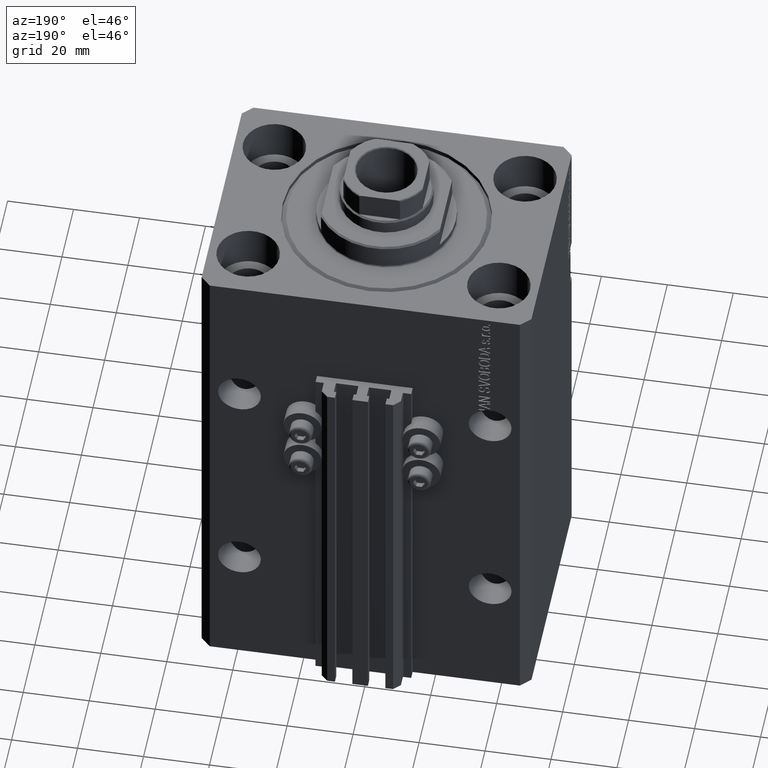
[diagram: clean part render]
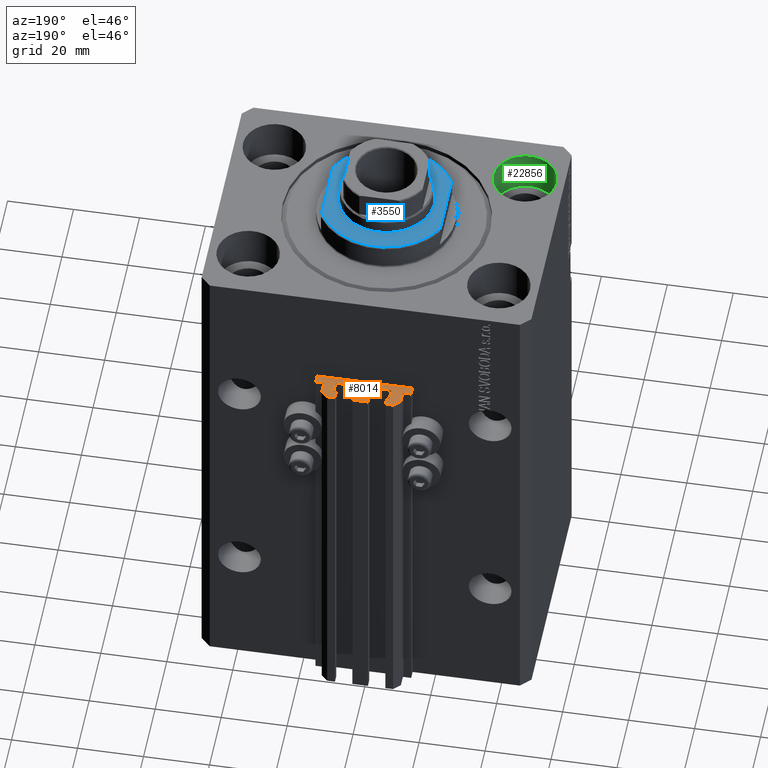
[diagram: same view with three faces highlighted in distinct colors, each labeled with its STEP entity id]
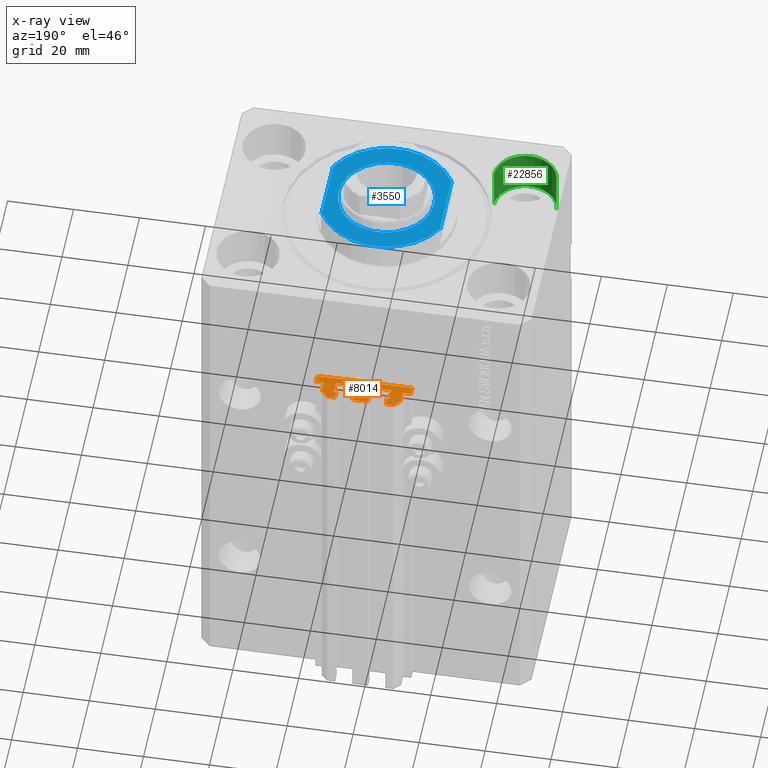
[diagram: x-ray of the same camera — body ghosted, the three highlighted faces saturated]
A machine part, auxiliary view with three faces highlighted in distinct colors.
The next image is the same camera in x-ray (body ghosted, the three faces saturated) — at least one of them is partly hidden behind the body in this view.
Their STEP definitions:

[orange] entity #8014 — the highlighted planar face has unit normal (0, 0, 1).
#112 = LINE ( 'NONE', #11040, #38603 ) ;
#312 = DIRECTION ( 'NONE',  ( 1.000000000000000000, 0.000000000000000000, 0.000000000000000000 ) ) ;
#487 = ORIENTED_EDGE ( 'NONE', *, *, #33979, .T. ) ;
#779 = DIRECTION ( 'NONE',  ( 0.000000000000000000, 0.000000000000000000, 1.000000000000000000 ) ) ;
#811 = LINE ( 'NONE', #11747, #3834 ) ;
#1242 = DIRECTION ( 'NONE',  ( -1.000000000000000000, 3.016910393003142859E-15, 0.000000000000000000 ) ) ;
#1515 = CARTESIAN_POINT ( 'NONE',  ( 12.00000000000000000, 43.50000000000002132, -33.00000000000000000 ) ) ;
#1530 = EDGE_CURVE ( 'NONE', #45175, #7812, #13263, .T. ) ;
#1859 = LINE ( 'NONE', #8439, #25325 ) ;
#1941 = CARTESIAN_POINT ( 'NONE',  ( -14.50000000000000000, 39.99999999999999289, -33.00000000000000000 ) ) ;
#2006 = CARTESIAN_POINT ( 'NONE',  ( -12.20000000000000107, 39.99999999999998579, -33.00000000000000000 ) ) ;
#2014 = CARTESIAN_POINT ( 'NONE',  ( 1.800000000000000933, 43.10000000000001563, -33.00000000000000000 ) ) ;
#2026 = VERTEX_POINT ( 'NONE', #15361 ) ;
#2181 = EDGE_LOOP ( 'NONE', ( #47272, #13714, #38264, #10591, #11850, #34639, #36152, #16729, #28123, #32084, #20403, #42300, #10362, #31380, #44688, #30575, #34344, #47766, #24332, #41920, #40230, #35853, #8156, #44907, #38311, #28999, #36255, #23170, #4377, #39959, #42452, #22387, #487, #44876, #34476, #45355 ) ) ;
#2293 = CARTESIAN_POINT ( 'NONE',  ( -8.399999999999996803, 39.69999999999999574, -33.00000000000000000 ) ) ;
#3006 = AXIS2_PLACEMENT_3D ( 'NONE', #28438, #17453, #35991 ) ;
#3054 = DIRECTION ( 'NONE',  ( 1.000000000000000000, 0.000000000000000000, 0.000000000000000000 ) ) ;
#3213 = CARTESIAN_POINT ( 'NONE',  ( -7.650000000000002132, 45.49999999999999289, -33.00000000000000000 ) ) ;
#3340 = CARTESIAN_POINT ( 'NONE',  ( 8.199999999999999289, 39.70000000000000284, -33.00000000000000000 ) ) ;
#3342 = CARTESIAN_POINT ( 'NONE',  ( -12.00000000000000000, 40.19999999999998863, -33.00000000000000000 ) ) ;
#3834 = VECTOR ( 'NONE', #15652, 1000.000000000000000 ) ;
#3875 = VECTOR ( 'NONE', #37937, 1000.000000000000000 ) ;
#3954 = DIRECTION ( 'NONE',  ( 0.000000000000000000, 0.000000000000000000, 1.000000000000000000 ) ) ;
#3999 = CARTESIAN_POINT ( 'NONE',  ( -12.20000000000000107, 40.19999999999998863, -33.00000000000000000 ) ) ;
#4063 = LINE ( 'NONE', #30136, #3875 ) ;
#4238 = DIRECTION ( 'NONE',  ( 1.000000000000000000, 0.000000000000000000, 0.000000000000000000 ) ) ;
#4305 = CARTESIAN_POINT ( 'NONE',  ( -1.599999999999997868, 42.90000000000000568, -33.00000000000000000 ) ) ;
#4377 = ORIENTED_EDGE ( 'NONE', *, *, #14404, .F. ) ;
#4388 = LINE ( 'NONE', #45357, #26268 ) ;
#4472 = CIRCLE ( 'NONE', #28622, 0.2000000000000040079 ) ;
#4640 = LINE ( 'NONE', #1941, #36259 ) ;
#4657 = CARTESIAN_POINT ( 'NONE',  ( -1.600000000000000755, 39.69999999999999574, -33.00000000000000000 ) ) ;
#4808 = VERTEX_POINT ( 'NONE', #41152 ) ;
#5164 = VECTOR ( 'NONE', #27608, 1000.000000000000000 ) ;
#5512 = CARTESIAN_POINT ( 'NONE',  ( -1.600000000000000533, 42.90000000000000568, -33.00000000000000000 ) ) ;
#5860 = VECTOR ( 'NONE', #16462, 1000.000000000000000 ) ;
#6119 = CARTESIAN_POINT ( 'NONE',  ( -10.00000000000000000, 45.49999999999999289, -33.00000000000000000 ) ) ;
#6802 = LINE ( 'NONE', #21896, #46482 ) ;
#6853 = VERTEX_POINT ( 'NONE', #33206 ) ;
#6878 = CARTESIAN_POINT ( 'NONE',  ( 14.49999999999999645, 37.50000000000000711, -33.00000000000000000 ) ) ;
#7037 = VECTOR ( 'NONE', #9351, 1000.000000000000000 ) ;
#7167 = CARTESIAN_POINT ( 'NONE',  ( 7.649999999999998579, 43.10000000000002984, -33.00000000000000000 ) ) ;
#7234 = DIRECTION ( 'NONE',  ( 1.000000000000000000, 0.000000000000000000, 0.000000000000000000 ) ) ;
#7355 = DIRECTION ( 'NONE',  ( 1.000000000000000000, 0.000000000000000000, 0.000000000000000000 ) ) ;
#7358 = DIRECTION ( 'NONE',  ( 1.000000000000000000, 0.000000000000000000, 0.000000000000000000 ) ) ;
#7423 = CARTESIAN_POINT ( 'NONE',  ( -1.800000000000000933, 42.90000000000000568, -33.00000000000000000 ) ) ;
#7454 = DIRECTION ( 'NONE',  ( 0.000000000000000000, 0.000000000000000000, 1.000000000000000000 ) ) ;
#7602 = CARTESIAN_POINT ( 'NONE',  ( 12.20000000000000107, 40.20000000000002416, -33.00000000000000000 ) ) ;
#7719 = CARTESIAN_POINT ( 'NONE',  ( -7.650000000000002132, 45.49999999999999289, -33.00000000000000000 ) ) ;
#7812 = VERTEX_POINT ( 'NONE', #7719 ) ;
#7988 = LINE ( 'NONE', #16011, #44884 ) ;
#8014 = ADVANCED_FACE ( 'NONE', ( #27679 ), #24501, .T. ) ;
#8089 = EDGE_CURVE ( 'NONE', #36703, #29870, #25162, .T. ) ;
#8156 = ORIENTED_EDGE ( 'NONE', *, *, #8089, .F. ) ;
#8269 = CARTESIAN_POINT ( 'NONE',  ( -8.199999999999999289, 43.09999999999999432, -33.00000000000000000 ) ) ;
#8278 = CIRCLE ( 'NONE', #15365, 0.2000000000000005107 ) ;
#8385 = CARTESIAN_POINT ( 'NONE',  ( -8.400000000000000355, 42.89999999999999147, -33.00000000000000000 ) ) ;
#8439 = CARTESIAN_POINT ( 'NONE',  ( -8.199999999999999289, 43.09999999999999432, -33.00000000000000000 ) ) ;
#8787 = VERTEX_POINT ( 'NONE', #27564 ) ;
#9153 = DIRECTION ( 'NONE',  ( 0.000000000000000000, 0.000000000000000000, 1.000000000000000000 ) ) ;
#9351 = DIRECTION ( 'NONE',  ( -1.000000000000000000, -1.084202172485504828E-15, 0.000000000000000000 ) ) ;
#9688 = VERTEX_POINT ( 'NONE', #14133 ) ;
#9824 = VERTEX_POINT ( 'NONE', #8269 ) ;
#9972 = CARTESIAN_POINT ( 'NONE',  ( 11.99999999999999822, 40.20000000000002416, -33.00000000000000000 ) ) ;
#10060 = CARTESIAN_POINT ( 'NONE',  ( 8.199999999999999289, 39.50000000000000711, -33.00000000000000000 ) ) ;
#10362 = ORIENTED_EDGE ( 'NONE', *, *, #18110, .F. ) ;
#10387 = VECTOR ( 'NONE', #29149, 1000.000000000000227 ) ;
#10514 = VERTEX_POINT ( 'NONE', #13899 ) ;
#10567 = AXIS2_PLACEMENT_3D ( 'NONE', #31178, #33693, #312 ) ;
#10591 = ORIENTED_EDGE ( 'NONE', *, *, #44066, .T. ) ;
#10900 = VECTOR ( 'NONE', #43013, 1000.000000000000000 ) ;
#11040 = CARTESIAN_POINT ( 'NONE',  ( 7.649999999999998579, 43.10000000000002984, -33.00000000000000000 ) ) ;
#11747 = CARTESIAN_POINT ( 'NONE',  ( -2.350000000000003197, 43.10000000000000853, -33.00000000000000000 ) ) ;
#11850 = ORIENTED_EDGE ( 'NONE', *, *, #37394, .F. ) ;
#12012 = CARTESIAN_POINT ( 'NONE',  ( -1.800000000000000933, 43.10000000000001563, -33.00000000000000000 ) ) ;
#12089 = VECTOR ( 'NONE', #1242, 1000.000000000000000 ) ;
#12179 = LINE ( 'NONE', #41480, #12089 ) ;
#12232 = VECTOR ( 'NONE', #19794, 1000.000000000000000 ) ;
#12433 = VECTOR ( 'NONE', #20499, 1000.000000000000114 ) ;
#12604 = VERTEX_POINT ( 'NONE', #21486 ) ;
#12867 = VERTEX_POINT ( 'NONE', #9972 ) ;
#13085 = EDGE_CURVE ( 'NONE', #28530, #41012, #13674, .T. ) ;
#13104 = CARTESIAN_POINT ( 'NONE',  ( -7.650000000000002132, 43.09999999999999432, -33.00000000000000000 ) ) ;
#13263 = LINE ( 'NONE', #28160, #47568 ) ;
#13478 = CARTESIAN_POINT ( 'NONE',  ( 8.200000000000001066, 43.10000000000002984, -33.00000000000000000 ) ) ;
#13489 = VERTEX_POINT ( 'NONE', #6119 ) ;
#13567 = CARTESIAN_POINT ( 'NONE',  ( 7.649999999999998579, 45.50000000000002842, -33.00000000000000000 ) ) ;
#13674 = CIRCLE ( 'NONE', #46381, 0.1999999999999994282 ) ;
#13714 = ORIENTED_EDGE ( 'NONE', *, *, #46374, .T. ) ;
#13899 = CARTESIAN_POINT ( 'NONE',  ( 1.800000000000000933, 43.10000000000001563, -33.00000000000000000 ) ) ;
#14133 = CARTESIAN_POINT ( 'NONE',  ( 1.800000000000000933, 39.50000000000000000, -33.00000000000000000 ) ) ;
#14404 = EDGE_CURVE ( 'NONE', #9824, #45755, #30727, .T. ) ;
#14514 = VERTEX_POINT ( 'NONE', #35555 ) ;
#14645 = VERTEX_POINT ( 'NONE', #33814 ) ;
#14652 = VERTEX_POINT ( 'NONE', #23313 ) ;
#14759 = DIRECTION ( 'NONE',  ( 0.000000000000000000, -1.000000000000000000, 0.000000000000000000 ) ) ;
#14982 = CARTESIAN_POINT ( 'NONE',  ( -8.199999999999997513, 39.69999999999999574, -33.00000000000000000 ) ) ;
#15361 = CARTESIAN_POINT ( 'NONE',  ( 14.49999999999999645, 40.00000000000002132, -33.00000000000000000 ) ) ;
#15365 = AXIS2_PLACEMENT_3D ( 'NONE', #3999, #33725, #4238 ) ;
#15652 = DIRECTION ( 'NONE',  ( 1.000000000000000000, 1.261617073437673039E-14, 0.000000000000000000 ) ) ;
#15851 = VERTEX_POINT ( 'NONE', #34750 ) ;
#16011 = CARTESIAN_POINT ( 'NONE',  ( 7.649999999999998579, 45.50000000000002842, -33.00000000000000000 ) ) ;
#16370 = CARTESIAN_POINT ( 'NONE',  ( 8.400000000000000355, 39.70000000000000995, -33.00000000000000000 ) ) ;
#16462 = DIRECTION ( 'NONE',  ( -6.776263578034385456E-17, -1.000000000000000000, 0.000000000000000000 ) ) ;
#16617 = VERTEX_POINT ( 'NONE', #6878 ) ;
#16630 = AXIS2_PLACEMENT_3D ( 'NONE', #14982, #7454, #22314 ) ;
#16655 = EDGE_CURVE ( 'NONE', #34462, #30572, #12179, .T. ) ;
#16729 = ORIENTED_EDGE ( 'NONE', *, *, #42251, .T. ) ;
#16757 = CARTESIAN_POINT ( 'NONE',  ( 2.349999999999999645, 45.50000000000000711, -33.00000000000000000 ) ) ;
#16903 = LINE ( 'NONE', #2293, #10900 ) ;
#17003 = CARTESIAN_POINT ( 'NONE',  ( -1.800000000000000933, 39.69999999999999574, -33.00000000000000000 ) ) ;
#17188 = EDGE_CURVE ( 'NONE', #24525, #31076, #112, .T. ) ;
#17255 = EDGE_CURVE ( 'NONE', #6853, #40028, #45931, .T. ) ;
#17453 = DIRECTION ( 'NONE',  ( 0.000000000000000000, 0.000000000000000000, 1.000000000000000000 ) ) ;
#17848 = CARTESIAN_POINT ( 'NONE',  ( 2.349999999999999645, 43.10000000000000853, -33.00000000000000000 ) ) ;
#17940 = CARTESIAN_POINT ( 'NONE',  ( -10.00000000000000000, 45.49999999999999289, -33.00000000000000000 ) ) ;
#17965 = VERTEX_POINT ( 'NONE', #16757 ) ;
#17997 = DIRECTION ( 'NONE',  ( -1.000000000000000000, 0.000000000000000000, 0.000000000000000000 ) ) ;
#18066 = DIRECTION ( 'NONE',  ( -1.000000000000000000, 0.000000000000000000, 0.000000000000000000 ) ) ;
#18110 = EDGE_CURVE ( 'NONE', #12604, #31430, #45649, .T. ) ;
#18199 = VERTEX_POINT ( 'NONE', #26702 ) ;
#18716 = VECTOR ( 'NONE', #40498, 1000.000000000000000 ) ;
#18845 = EDGE_CURVE ( 'NONE', #12867, #18199, #45621, .T. ) ;
#18850 = DIRECTION ( 'NONE',  ( 1.000000000000000000, 0.000000000000000000, 0.000000000000000000 ) ) ;
#19739 = CARTESIAN_POINT ( 'NONE',  ( -2.350000000000003642, 45.50000000000000711, -33.00000000000000000 ) ) ;
#19794 = DIRECTION ( 'NONE',  ( 1.000000000000000000, -1.261617073437681085E-14, 0.000000000000000000 ) ) ;
#20403 = ORIENTED_EDGE ( 'NONE', *, *, #20823, .F. ) ;
#20499 = DIRECTION ( 'NONE',  ( -0.7071067811865474617, 0.7071067811865474617, 0.000000000000000000 ) ) ;
#20519 = LINE ( 'NONE', #2014, #12232 ) ;
#20661 = VERTEX_POINT ( 'NONE', #29295 ) ;
#20663 = EDGE_CURVE ( 'NONE', #14652, #17965, #21255, .T. ) ;
#20823 = EDGE_CURVE ( 'NONE', #26539, #31076, #4472, .T. ) ;
#20955 = CARTESIAN_POINT ( 'NONE',  ( -1.800000000000000933, 39.50000000000000000, -33.00000000000000000 ) ) ;
#21186 = DIRECTION ( 'NONE',  ( -1.000000000000000000, 0.000000000000000000, 0.000000000000000000 ) ) ;
#21255 = LINE ( 'NONE', #17848, #37939 ) ;
#21486 = CARTESIAN_POINT ( 'NONE',  ( 8.199999999999999289, 39.50000000000000711, -33.00000000000000000 ) ) ;
#21559 = DIRECTION ( 'NONE',  ( 0.000000000000000000, 0.000000000000000000, 1.000000000000000000 ) ) ;
#21896 = CARTESIAN_POINT ( 'NONE',  ( 9.999999999999998224, 45.50000000000002842, -33.00000000000000000 ) ) ;
#22292 = CARTESIAN_POINT ( 'NONE',  ( 1.800000000000000933, 39.69999999999999574, -33.00000000000000000 ) ) ;
#22314 = DIRECTION ( 'NONE',  ( 1.000000000000000000, 0.000000000000000000, 0.000000000000000000 ) ) ;
#22387 = ORIENTED_EDGE ( 'NONE', *, *, #25787, .T. ) ;
#23170 = ORIENTED_EDGE ( 'NONE', *, *, #30959, .T. ) ;
#23303 = DIRECTION ( 'NONE',  ( 1.000000000000000000, 0.000000000000000000, 0.000000000000000000 ) ) ;
#23313 = CARTESIAN_POINT ( 'NONE',  ( 2.349999999999999645, 43.10000000000000853, -33.00000000000000000 ) ) ;
#23464 = EDGE_CURVE ( 'NONE', #10514, #40028, #29442, .T. ) ;
#23465 = LINE ( 'NONE', #24197, #40210 ) ;
#23922 = LINE ( 'NONE', #1515, #12433 ) ;
#24197 = CARTESIAN_POINT ( 'NONE',  ( 14.49999999999999645, 40.00000000000002132, -33.00000000000000000 ) ) ;
#24332 = ORIENTED_EDGE ( 'NONE', *, *, #20663, .T. ) ;
#24501 = PLANE ( 'NONE',  #47771 ) ;
#24525 = VERTEX_POINT ( 'NONE', #7167 ) ;
#25065 = EDGE_CURVE ( 'NONE', #28530, #36753, #39508, .T. ) ;
#25162 = CIRCLE ( 'NONE', #42313, 0.2000000000000031197 ) ;
#25325 = VECTOR ( 'NONE', #23303, 1000.000000000000000 ) ;
#25787 = EDGE_CURVE ( 'NONE', #7812, #13489, #44664, .T. ) ;
#26183 = VERTEX_POINT ( 'NONE', #13567 ) ;
#26268 = VECTOR ( 'NONE', #35251, 1000.000000000000000 ) ;
#26360 = EDGE_CURVE ( 'NONE', #14645, #14514, #4063, .T. ) ;
#26539 = VERTEX_POINT ( 'NONE', #31092 ) ;
#26702 = CARTESIAN_POINT ( 'NONE',  ( 12.00000000000000000, 43.50000000000002132, -33.00000000000000000 ) ) ;
#27251 = EDGE_CURVE ( 'NONE', #18199, #20661, #23922, .T. ) ;
#27564 = CARTESIAN_POINT ( 'NONE',  ( -14.50000000000000000, 37.50000000000000000, -33.00000000000000000 ) ) ;
#27608 = DIRECTION ( 'NONE',  ( 0.000000000000000000, 1.000000000000000000, 0.000000000000000000 ) ) ;
#27679 = FACE_OUTER_BOUND ( 'NONE', #2181, .T. ) ;
#27928 = DIRECTION ( 'NONE',  ( 1.000000000000000000, 0.000000000000000000, -0.000000000000000000 ) ) ;
#28123 = ORIENTED_EDGE ( 'NONE', *, *, #40542, .T. ) ;
#28160 = CARTESIAN_POINT ( 'NONE',  ( -7.650000000000002132, 43.09999999999999432, -33.00000000000000000 ) ) ;
#28438 = CARTESIAN_POINT ( 'NONE',  ( 1.800000000000000933, 42.90000000000000568, -33.00000000000000000 ) ) ;
#28516 = AXIS2_PLACEMENT_3D ( 'NONE', #3340, #29658, #7234 ) ;
#28530 = VERTEX_POINT ( 'NONE', #33829 ) ;
#28622 = AXIS2_PLACEMENT_3D ( 'NONE', #30259, #779, #7355 ) ;
#28892 = EDGE_CURVE ( 'NONE', #14514, #29870, #811, .T. ) ;
#28999 = ORIENTED_EDGE ( 'NONE', *, *, #25065, .T. ) ;
#29149 = DIRECTION ( 'NONE',  ( -0.7071067811865460184, -0.7071067811865490160, 0.000000000000000000 ) ) ;
#29295 = CARTESIAN_POINT ( 'NONE',  ( 9.999999999999998224, 45.50000000000002842, -33.00000000000000000 ) ) ;
#29389 = LINE ( 'NONE', #17940, #10387 ) ;
#29442 = CIRCLE ( 'NONE', #3006, 0.2000000000000033418 ) ;
#29658 = DIRECTION ( 'NONE',  ( 0.000000000000000000, 0.000000000000000000, 1.000000000000000000 ) ) ;
#29743 = CARTESIAN_POINT ( 'NONE',  ( 14.49999999999999645, 37.50000000000000711, -33.00000000000000000 ) ) ;
#29870 = VERTEX_POINT ( 'NONE', #12012 ) ;
#29899 = CARTESIAN_POINT ( 'NONE',  ( -8.199999999999997513, 39.50000000000000000, -33.00000000000000000 ) ) ;
#30136 = CARTESIAN_POINT ( 'NONE',  ( -2.350000000000003642, 45.50000000000000711, -33.00000000000000000 ) ) ;
#30259 = CARTESIAN_POINT ( 'NONE',  ( 8.200000000000001066, 42.90000000000001990, -33.00000000000000000 ) ) ;
#30304 = VECTOR ( 'NONE', #18066, 1000.000000000000000 ) ;
#30539 = CARTESIAN_POINT ( 'NONE',  ( 1.600000000000000533, 39.69999999999999574, -33.00000000000000000 ) ) ;
#30572 = VERTEX_POINT ( 'NONE', #46552 ) ;
#30575 = ORIENTED_EDGE ( 'NONE', *, *, #17255, .T. ) ;
#30725 = CIRCLE ( 'NONE', #32301, 0.2000000000000022593 ) ;
#30727 = CIRCLE ( 'NONE', #10567, 0.2000000000000005107 ) ;
#30892 = DIRECTION ( 'NONE',  ( 0.000000000000000000, -1.000000000000000000, 0.000000000000000000 ) ) ;
#30896 = AXIS2_PLACEMENT_3D ( 'NONE', #22292, #44025, #40361 ) ;
#30956 = EDGE_CURVE ( 'NONE', #12604, #9688, #32264, .T. ) ;
#30959 = EDGE_CURVE ( 'NONE', #15851, #45755, #16903, .T. ) ;
#30962 = LINE ( 'NONE', #19739, #44953 ) ;
#31076 = VERTEX_POINT ( 'NONE', #13478 ) ;
#31092 = CARTESIAN_POINT ( 'NONE',  ( 8.400000000000003908, 42.90000000000001990, -33.00000000000000000 ) ) ;
#31178 = CARTESIAN_POINT ( 'NONE',  ( -8.199999999999997513, 42.89999999999999147, -33.00000000000000000 ) ) ;
#31207 = DIRECTION ( 'NONE',  ( -5.256737805990328981E-16, 1.000000000000000000, 0.000000000000000000 ) ) ;
#31380 = ORIENTED_EDGE ( 'NONE', *, *, #30956, .T. ) ;
#31430 = VERTEX_POINT ( 'NONE', #16370 ) ;
#31491 = EDGE_CURVE ( 'NONE', #16617, #2026, #36819, .T. ) ;
#31877 = DIRECTION ( 'NONE',  ( 0.000000000000000000, 0.000000000000000000, 1.000000000000000000 ) ) ;
#32084 = ORIENTED_EDGE ( 'NONE', *, *, #17188, .T. ) ;
#32264 = LINE ( 'NONE', #10060, #7037 ) ;
#32301 = AXIS2_PLACEMENT_3D ( 'NONE', #7602, #3954, #7358 ) ;
#33206 = CARTESIAN_POINT ( 'NONE',  ( 1.600000000000001421, 39.69999999999999574, -33.00000000000000000 ) ) ;
#33305 = CARTESIAN_POINT ( 'NONE',  ( -12.00000000000000000, 43.49999999999998579, -33.00000000000000000 ) ) ;
#33693 = DIRECTION ( 'NONE',  ( 0.000000000000000000, 0.000000000000000000, 1.000000000000000000 ) ) ;
#33725 = DIRECTION ( 'NONE',  ( 0.000000000000000000, 0.000000000000000000, 1.000000000000000000 ) ) ;
#33814 = CARTESIAN_POINT ( 'NONE',  ( -2.350000000000003642, 45.50000000000000711, -33.00000000000000000 ) ) ;
#33829 = CARTESIAN_POINT ( 'NONE',  ( -1.800000000000000933, 39.50000000000000000, -33.00000000000000000 ) ) ;
#33979 = EDGE_CURVE ( 'NONE', #13489, #4808, #29389, .T. ) ;
#34156 = EDGE_CURVE ( 'NONE', #15851, #36753, #39206, .T. ) ;
#34188 = CARTESIAN_POINT ( 'NONE',  ( 1.600000000000000533, 42.90000000000000568, -33.00000000000000000 ) ) ;
#34344 = ORIENTED_EDGE ( 'NONE', *, *, #23464, .F. ) ;
#34462 = VERTEX_POINT ( 'NONE', #2006 ) ;
#34476 = ORIENTED_EDGE ( 'NONE', *, *, #43921, .F. ) ;
#34639 = ORIENTED_EDGE ( 'NONE', *, *, #18845, .T. ) ;
#34750 = CARTESIAN_POINT ( 'NONE',  ( -8.399999999999996803, 39.69999999999999574, -33.00000000000000000 ) ) ;
#34863 = CARTESIAN_POINT ( 'NONE',  ( 12.00000000000000178, 40.20000000000002416, -33.00000000000000000 ) ) ;
#35251 = DIRECTION ( 'NONE',  ( 1.000000000000000000, 2.392722035830078972E-16, 0.000000000000000000 ) ) ;
#35555 = CARTESIAN_POINT ( 'NONE',  ( -2.350000000000003197, 43.10000000000000853, -33.00000000000000000 ) ) ;
#35853 = ORIENTED_EDGE ( 'NONE', *, *, #28892, .T. ) ;
#35991 = DIRECTION ( 'NONE',  ( 1.000000000000000000, 0.000000000000000000, 0.000000000000000000 ) ) ;
#36152 = ORIENTED_EDGE ( 'NONE', *, *, #27251, .T. ) ;
#36255 = ORIENTED_EDGE ( 'NONE', *, *, #34156, .F. ) ;
#36259 = VECTOR ( 'NONE', #47039, 1000.000000000000000 ) ;
#36368 = VECTOR ( 'NONE', #47091, 1000.000000000000000 ) ;
#36661 = VERTEX_POINT ( 'NONE', #3342 ) ;
#36703 = VERTEX_POINT ( 'NONE', #4305 ) ;
#36753 = VERTEX_POINT ( 'NONE', #29899 ) ;
#36819 = LINE ( 'NONE', #29743, #18716 ) ;
#36876 = EDGE_CURVE ( 'NONE', #36703, #41012, #42332, .T. ) ;
#37394 = EDGE_CURVE ( 'NONE', #12867, #38504, #30725, .T. ) ;
#37902 = EDGE_CURVE ( 'NONE', #9824, #45175, #1859, .T. ) ;
#37937 = DIRECTION ( 'NONE',  ( 1.807003620809174632E-16, -1.000000000000000000, 0.000000000000000000 ) ) ;
#37939 = VECTOR ( 'NONE', #40532, 1000.000000000000000 ) ;
#38209 = CARTESIAN_POINT ( 'NONE',  ( 12.20000000000000107, 40.00000000000002132, -33.00000000000000000 ) ) ;
#38264 = ORIENTED_EDGE ( 'NONE', *, *, #31491, .T. ) ;
#38311 = ORIENTED_EDGE ( 'NONE', *, *, #13085, .F. ) ;
#38504 = VERTEX_POINT ( 'NONE', #38209 ) ;
#38603 = VECTOR ( 'NONE', #18850, 1000.000000000000000 ) ;
#39206 = CIRCLE ( 'NONE', #16630, 0.1999999999999987899 ) ;
#39508 = LINE ( 'NONE', #20955, #41228 ) ;
#39581 = EDGE_CURVE ( 'NONE', #30572, #8787, #4640, .T. ) ;
#39959 = ORIENTED_EDGE ( 'NONE', *, *, #37902, .T. ) ;
#40028 = VERTEX_POINT ( 'NONE', #34188 ) ;
#40210 = VECTOR ( 'NONE', #45682, 1000.000000000000000 ) ;
#40230 = ORIENTED_EDGE ( 'NONE', *, *, #26360, .T. ) ;
#40361 = DIRECTION ( 'NONE',  ( 1.000000000000000000, 0.000000000000000000, 0.000000000000000000 ) ) ;
#40498 = DIRECTION ( 'NONE',  ( 0.000000000000000000, 1.000000000000000000, 0.000000000000000000 ) ) ;
#40532 = DIRECTION ( 'NONE',  ( 0.000000000000000000, 1.000000000000000000, 0.000000000000000000 ) ) ;
#40542 = EDGE_CURVE ( 'NONE', #26183, #24525, #7988, .T. ) ;
#41012 = VERTEX_POINT ( 'NONE', #4657 ) ;
#41016 = VECTOR ( 'NONE', #31207, 1000.000000000000000 ) ;
#41152 = CARTESIAN_POINT ( 'NONE',  ( -12.00000000000000000, 43.49999999999998579, -33.00000000000000000 ) ) ;
#41228 = VECTOR ( 'NONE', #21186, 1000.000000000000000 ) ;
#41480 = CARTESIAN_POINT ( 'NONE',  ( -12.20000000000000107, 39.99999999999998579, -33.00000000000000000 ) ) ;
#41843 = CIRCLE ( 'NONE', #30896, 0.1999999999999998723 ) ;
#41920 = ORIENTED_EDGE ( 'NONE', *, *, #43345, .F. ) ;
#41957 = DIRECTION ( 'NONE',  ( 1.000000000000000000, 0.000000000000000000, 0.000000000000000000 ) ) ;
#42251 = EDGE_CURVE ( 'NONE', #20661, #26183, #6802, .T. ) ;
#42300 = ORIENTED_EDGE ( 'NONE', *, *, #46061, .T. ) ;
#42313 = AXIS2_PLACEMENT_3D ( 'NONE', #7423, #21559, #3054 ) ;
#42332 = LINE ( 'NONE', #5512, #5860 ) ;
#42452 = ORIENTED_EDGE ( 'NONE', *, *, #1530, .T. ) ;
#42547 = VECTOR ( 'NONE', #14759, 1000.000000000000000 ) ;
#42572 = CARTESIAN_POINT ( 'NONE',  ( 12.20000000000000107, 40.20000000000002416, -33.00000000000000000 ) ) ;
#42680 = LINE ( 'NONE', #33305, #42547 ) ;
#43013 = DIRECTION ( 'NONE',  ( -1.084202172485506406E-15, 1.000000000000000000, 0.000000000000000000 ) ) ;
#43097 = EDGE_CURVE ( 'NONE', #10514, #14652, #20519, .T. ) ;
#43101 = DIRECTION ( 'NONE',  ( 1.000000000000000000, 0.000000000000000000, 0.000000000000000000 ) ) ;
#43195 = LINE ( 'NONE', #46858, #36368 ) ;
#43345 = EDGE_CURVE ( 'NONE', #14645, #17965, #30962, .T. ) ;
#43466 = EDGE_CURVE ( 'NONE', #4808, #36661, #42680, .T. ) ;
#43761 = DIRECTION ( 'NONE',  ( 0.000000000000000000, 1.000000000000000000, 0.000000000000000000 ) ) ;
#43921 = EDGE_CURVE ( 'NONE', #34462, #36661, #8278, .T. ) ;
#44025 = DIRECTION ( 'NONE',  ( 0.000000000000000000, 0.000000000000000000, 1.000000000000000000 ) ) ;
#44066 = EDGE_CURVE ( 'NONE', #2026, #38504, #23465, .T. ) ;
#44664 = LINE ( 'NONE', #3213, #30304 ) ;
#44688 = ORIENTED_EDGE ( 'NONE', *, *, #45598, .F. ) ;
#44876 = ORIENTED_EDGE ( 'NONE', *, *, #43466, .T. ) ;
#44884 = VECTOR ( 'NONE', #30892, 1000.000000000000000 ) ;
#44907 = ORIENTED_EDGE ( 'NONE', *, *, #36876, .T. ) ;
#44953 = VECTOR ( 'NONE', #41957, 1000.000000000000000 ) ;
#45175 = VERTEX_POINT ( 'NONE', #13104 ) ;
#45355 = ORIENTED_EDGE ( 'NONE', *, *, #16655, .T. ) ;
#45357 = CARTESIAN_POINT ( 'NONE',  ( -14.50000000000000000, 37.50000000000000000, -33.00000000000000000 ) ) ;
#45598 = EDGE_CURVE ( 'NONE', #6853, #9688, #41843, .T. ) ;
#45621 = LINE ( 'NONE', #34863, #41016 ) ;
#45649 = CIRCLE ( 'NONE', #28516, 0.1999999999999987899 ) ;
#45682 = DIRECTION ( 'NONE',  ( -1.000000000000000000, 0.000000000000000000, 0.000000000000000000 ) ) ;
#45755 = VERTEX_POINT ( 'NONE', #8385 ) ;
#45931 = LINE ( 'NONE', #30539, #5164 ) ;
#46061 = EDGE_CURVE ( 'NONE', #26539, #31430, #43195, .T. ) ;
#46374 = EDGE_CURVE ( 'NONE', #8787, #16617, #4388, .T. ) ;
#46381 = AXIS2_PLACEMENT_3D ( 'NONE', #17003, #31877, #43101 ) ;
#46482 = VECTOR ( 'NONE', #17997, 1000.000000000000000 ) ;
#46552 = CARTESIAN_POINT ( 'NONE',  ( -14.50000000000000000, 39.99999999999999289, -33.00000000000000000 ) ) ;
#46858 = CARTESIAN_POINT ( 'NONE',  ( 8.400000000000000355, 42.90000000000001990, -33.00000000000000000 ) ) ;
#47039 = DIRECTION ( 'NONE',  ( 0.000000000000000000, -1.000000000000000000, 0.000000000000000000 ) ) ;
#47091 = DIRECTION ( 'NONE',  ( -5.421010862427508365E-16, -1.000000000000000000, 0.000000000000000000 ) ) ;
#47272 = ORIENTED_EDGE ( 'NONE', *, *, #39581, .T. ) ;
#47568 = VECTOR ( 'NONE', #43761, 1000.000000000000000 ) ;
#47766 = ORIENTED_EDGE ( 'NONE', *, *, #43097, .T. ) ;
#47771 = AXIS2_PLACEMENT_3D ( 'NONE', #42572, #9153, #27928 ) ;

[blue] entity #3550 — the highlighted planar face has unit normal (0, 0, 1).
#1899 = CARTESIAN_POINT ( 'NONE',  ( -18.00000000000000000, -9.810708435174332109, -8.000000000000000000 ) ) ;
#2987 = EDGE_CURVE ( 'NONE', #22659, #5491, #34357, .T. ) ;
#3309 = CARTESIAN_POINT ( 'NONE',  ( -14.49999999999999822, 0.000000000000000000, -8.000000000000000000 ) ) ;
#3466 = ORIENTED_EDGE ( 'NONE', *, *, #42321, .T. ) ;
#3550 = ADVANCED_FACE ( 'NONE', ( #24443, #32244 ), #10509, .T. ) ;
#4645 = ORIENTED_EDGE ( 'NONE', *, *, #9870, .T. ) ;
#4824 = LINE ( 'NONE', #22850, #25467 ) ;
#4909 = CARTESIAN_POINT ( 'NONE',  ( -18.00000000000000000, -41.24318125460256113, -8.000000000000000000 ) ) ;
#5246 = CARTESIAN_POINT ( 'NONE',  ( 0.000000000000000000, 0.000000000000000000, -8.000000000000000000 ) ) ;
#5491 = VERTEX_POINT ( 'NONE', #41373 ) ;
#6474 = VERTEX_POINT ( 'NONE', #32074 ) ;
#7044 = CARTESIAN_POINT ( 'NONE',  ( 14.49999999999999822, 1.775737858763662015E-15, -8.000000000000000000 ) ) ;
#7844 = DIRECTION ( 'NONE',  ( -0.000000000000000000, -1.000000000000000000, -0.000000000000000000 ) ) ;
#7916 = DIRECTION ( 'NONE',  ( -0.000000000000000000, -0.000000000000000000, 1.000000000000000000 ) ) ;
#8554 = EDGE_CURVE ( 'NONE', #22659, #35602, #12438, .T. ) ;
#9870 = EDGE_CURVE ( 'NONE', #6474, #35602, #11990, .T. ) ;
#10210 = DIRECTION ( 'NONE',  ( 0.000000000000000000, 0.000000000000000000, -1.000000000000000000 ) ) ;
#10509 = PLANE ( 'NONE',  #19588 ) ;
#10529 = CIRCLE ( 'NONE', #30793, 14.49999999999999822 ) ;
#11182 = VERTEX_POINT ( 'NONE', #7044 ) ;
#11990 = CIRCLE ( 'NONE', #38508, 20.50000000000001776 ) ;
#12438 = LINE ( 'NONE', #4909, #24407 ) ;
#13009 = EDGE_LOOP ( 'NONE', ( #13139, #41930 ) ) ;
#13139 = ORIENTED_EDGE ( 'NONE', *, *, #33285, .T. ) ;
#13325 = AXIS2_PLACEMENT_3D ( 'NONE', #46339, #10210, #36073 ) ;
#14968 = VERTEX_POINT ( 'NONE', #3309 ) ;
#16122 = EDGE_CURVE ( 'NONE', #11182, #14968, #10529, .T. ) ;
#16340 = EDGE_LOOP ( 'NONE', ( #47929, #3466, #4645, #36219 ) ) ;
#19588 = AXIS2_PLACEMENT_3D ( 'NONE', #25392, #36134, #40287 ) ;
#19959 = CARTESIAN_POINT ( 'NONE',  ( 0.000000000000000000, 0.000000000000000000, -8.000000000000000000 ) ) ;
#20099 = DIRECTION ( 'NONE',  ( -1.000000000000000000, 0.000000000000000000, 0.000000000000000000 ) ) ;
#20496 = AXIS2_PLACEMENT_3D ( 'NONE', #26439, #7916, #26671 ) ;
#21256 = CIRCLE ( 'NONE', #20496, 14.49999999999999822 ) ;
#22659 = VERTEX_POINT ( 'NONE', #38813 ) ;
#22850 = CARTESIAN_POINT ( 'NONE',  ( 18.00000000000000000, -41.24318125460256113, -8.000000000000000000 ) ) ;
#24407 = VECTOR ( 'NONE', #7844, 1000.000000000000000 ) ;
#24443 = FACE_BOUND ( 'NONE', #13009, .T. ) ;
#24581 = DIRECTION ( 'NONE',  ( 0.000000000000000000, 0.000000000000000000, -1.000000000000000000 ) ) ;
#25392 = CARTESIAN_POINT ( 'NONE',  ( 0.000000000000000000, 0.000000000000000000, -8.000000000000000000 ) ) ;
#25467 = VECTOR ( 'NONE', #30414, 1000.000000000000000 ) ;
#26439 = CARTESIAN_POINT ( 'NONE',  ( 0.000000000000000000, 0.000000000000000000, -8.000000000000000000 ) ) ;
#26671 = DIRECTION ( 'NONE',  ( -1.000000000000000000, 0.000000000000000000, 0.000000000000000000 ) ) ;
#30414 = DIRECTION ( 'NONE',  ( 0.000000000000000000, -1.000000000000000000, -0.000000000000000000 ) ) ;
#30793 = AXIS2_PLACEMENT_3D ( 'NONE', #5246, #34259, #20099 ) ;
#32074 = CARTESIAN_POINT ( 'NONE',  ( 18.00000000000000000, -9.810708435174332109, -8.000000000000000000 ) ) ;
#32244 = FACE_OUTER_BOUND ( 'NONE', #16340, .T. ) ;
#33285 = EDGE_CURVE ( 'NONE', #14968, #11182, #21256, .T. ) ;
#34259 = DIRECTION ( 'NONE',  ( -0.000000000000000000, -0.000000000000000000, 1.000000000000000000 ) ) ;
#34357 = CIRCLE ( 'NONE', #13325, 20.50000000000001776 ) ;
#35313 = DIRECTION ( 'NONE',  ( -1.000000000000000000, 0.000000000000000000, 0.000000000000000000 ) ) ;
#35602 = VERTEX_POINT ( 'NONE', #1899 ) ;
#36073 = DIRECTION ( 'NONE',  ( -1.000000000000000000, 0.000000000000000000, 0.000000000000000000 ) ) ;
#36134 = DIRECTION ( 'NONE',  ( 0.000000000000000000, 0.000000000000000000, -1.000000000000000000 ) ) ;
#36219 = ORIENTED_EDGE ( 'NONE', *, *, #8554, .F. ) ;
#38508 = AXIS2_PLACEMENT_3D ( 'NONE', #19959, #24581, #35313 ) ;
#38813 = CARTESIAN_POINT ( 'NONE',  ( -18.00000000000000000, 9.810708435174332109, -8.000000000000000000 ) ) ;
#40287 = DIRECTION ( 'NONE',  ( -1.000000000000000000, 0.000000000000000000, -0.000000000000000000 ) ) ;
#41373 = CARTESIAN_POINT ( 'NONE',  ( 18.00000000000000000, 9.810708435174332109, -8.000000000000000000 ) ) ;
#41930 = ORIENTED_EDGE ( 'NONE', *, *, #16122, .T. ) ;
#42321 = EDGE_CURVE ( 'NONE', #5491, #6474, #4824, .T. ) ;
#46339 = CARTESIAN_POINT ( 'NONE',  ( 0.000000000000000000, 0.000000000000000000, -8.000000000000000000 ) ) ;
#47929 = ORIENTED_EDGE ( 'NONE', *, *, #2987, .T. ) ;

[green] entity #22856 — the highlighted cylindrical surface (edge-blend (fillet) strip) has radius 9.5 mm, axis along (0, 0, 1).
#2351 = EDGE_CURVE ( 'NONE', #9723, #12849, #36971, .T. ) ;
#3236 = DIRECTION ( 'NONE',  ( 0.000000000000000000, 0.000000000000000000, 1.000000000000000000 ) ) ;
#3421 = DIRECTION ( 'NONE',  ( 1.000000000000000000, 0.000000000000000000, 0.000000000000000000 ) ) ;
#4864 = VERTEX_POINT ( 'NONE', #26964 ) ;
#5261 = AXIS2_PLACEMENT_3D ( 'NONE', #9493, #14281, #6998 ) ;
#6968 = CARTESIAN_POINT ( 'NONE',  ( -28.50000000000000355, -22.50000000000000000, -13.00000000000000000 ) ) ;
#6998 = DIRECTION ( 'NONE',  ( 1.000000000000000000, 0.000000000000000000, 0.000000000000000000 ) ) ;
#7090 = CYLINDRICAL_SURFACE ( 'NONE', #20107, 9.500000000000001776 ) ;
#7245 = EDGE_CURVE ( 'NONE', #21864, #4864, #9697, .T. ) ;
#9493 = CARTESIAN_POINT ( 'NONE',  ( -38.00000000000000711, -22.50000000000000000, 0.000000000000000000 ) ) ;
#9697 = LINE ( 'NONE', #6968, #47735 ) ;
#9723 = VERTEX_POINT ( 'NONE', #13890 ) ;
#12849 = VERTEX_POINT ( 'NONE', #25090 ) ;
#13673 = ORIENTED_EDGE ( 'NONE', *, *, #7245, .F. ) ;
#13890 = CARTESIAN_POINT ( 'NONE',  ( -47.50000000000000711, -22.50000000000000000, -13.00000000000000000 ) ) ;
#14281 = DIRECTION ( 'NONE',  ( 0.000000000000000000, 0.000000000000000000, 1.000000000000000000 ) ) ;
#16768 = AXIS2_PLACEMENT_3D ( 'NONE', #44691, #3236, #47616 ) ;
#20107 = AXIS2_PLACEMENT_3D ( 'NONE', #21939, #36815, #3421 ) ;
#21864 = VERTEX_POINT ( 'NONE', #40001 ) ;
#21939 = CARTESIAN_POINT ( 'NONE',  ( -38.00000000000000711, -22.50000000000000000, -13.00000000000000000 ) ) ;
#22666 = VECTOR ( 'NONE', #44548, 1000.000000000000000 ) ;
#22856 = ADVANCED_FACE ( 'NONE', ( #40494 ), #7090, .F. ) ;
#23883 = ORIENTED_EDGE ( 'NONE', *, *, #43514, .T. ) ;
#25090 = CARTESIAN_POINT ( 'NONE',  ( -47.50000000000000711, -22.50000000000000000, 0.000000000000000000 ) ) ;
#26270 = CIRCLE ( 'NONE', #5261, 9.500000000000001776 ) ;
#26964 = CARTESIAN_POINT ( 'NONE',  ( -28.50000000000000355, -22.50000000000000000, 0.000000000000000000 ) ) ;
#27761 = DIRECTION ( 'NONE',  ( -0.000000000000000000, -0.000000000000000000, 1.000000000000000000 ) ) ;
#29650 = CARTESIAN_POINT ( 'NONE',  ( -47.50000000000000711, -22.50000000000000000, -13.00000000000000000 ) ) ;
#31769 = ORIENTED_EDGE ( 'NONE', *, *, #38412, .F. ) ;
#34848 = EDGE_LOOP ( 'NONE', ( #31769, #47992, #23883, #13673 ) ) ;
#35467 = CIRCLE ( 'NONE', #16768, 9.500000000000001776 ) ;
#36815 = DIRECTION ( 'NONE',  ( -0.000000000000000000, -0.000000000000000000, 1.000000000000000000 ) ) ;
#36971 = LINE ( 'NONE', #29650, #22666 ) ;
#38412 = EDGE_CURVE ( 'NONE', #9723, #21864, #35467, .T. ) ;
#40001 = CARTESIAN_POINT ( 'NONE',  ( -28.50000000000000355, -22.50000000000000000, -13.00000000000000000 ) ) ;
#40494 = FACE_OUTER_BOUND ( 'NONE', #34848, .T. ) ;
#43514 = EDGE_CURVE ( 'NONE', #12849, #4864, #26270, .T. ) ;
#44548 = DIRECTION ( 'NONE',  ( -0.000000000000000000, -0.000000000000000000, 1.000000000000000000 ) ) ;
#44691 = CARTESIAN_POINT ( 'NONE',  ( -38.00000000000000711, -22.50000000000000000, -13.00000000000000000 ) ) ;
#47616 = DIRECTION ( 'NONE',  ( 1.000000000000000000, 0.000000000000000000, 0.000000000000000000 ) ) ;
#47735 = VECTOR ( 'NONE', #27761, 1000.000000000000000 ) ;
#47992 = ORIENTED_EDGE ( 'NONE', *, *, #2351, .T. ) ;